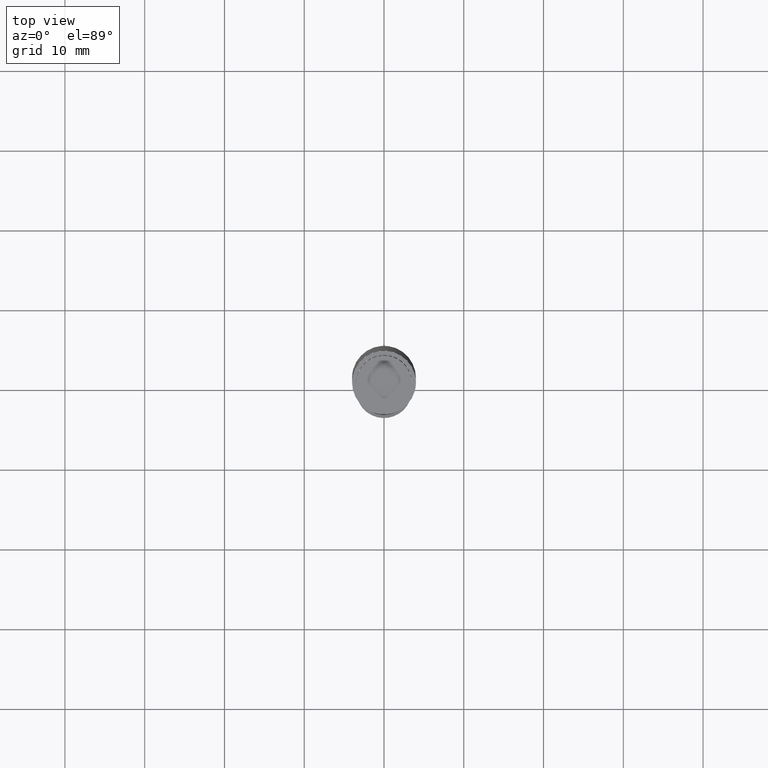
[diagram: clean part render]
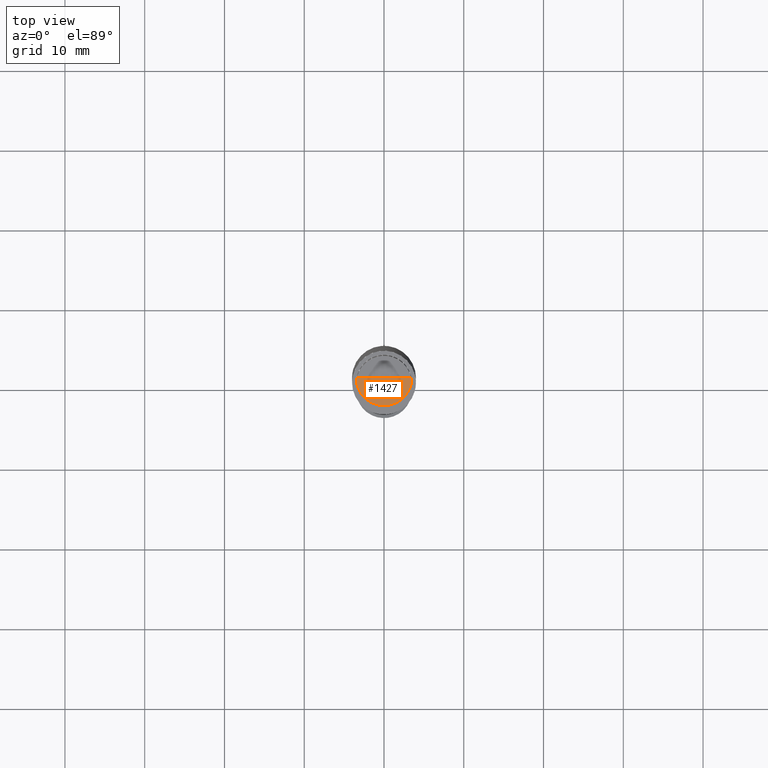
[diagram: same view with one face highlighted and labeled with its STEP entity id]
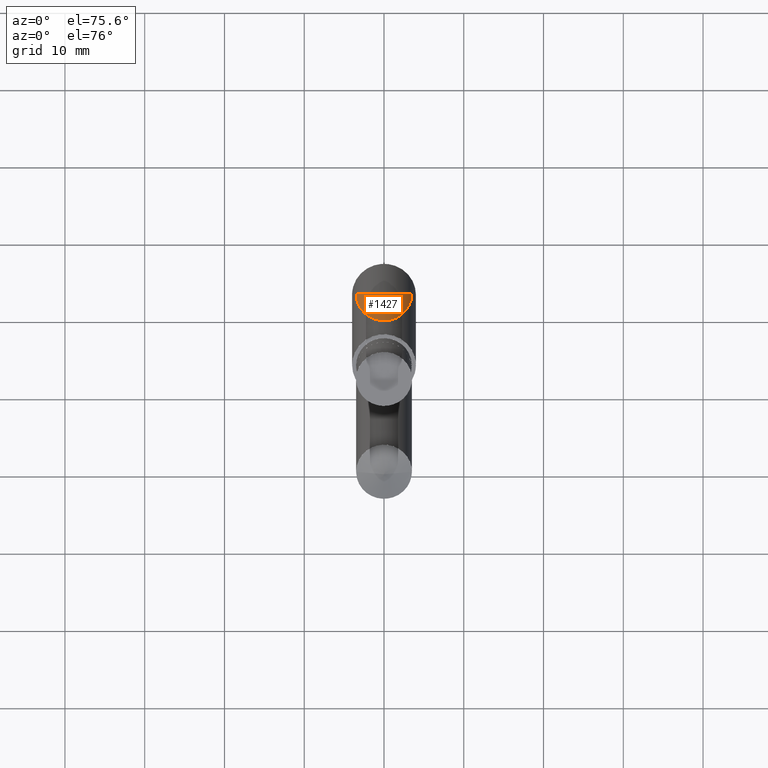
[diagram: same view with one face highlighted and labeled with its STEP entity id]
A machine part, top view. The second image highlights one B-rep face of the part: STEP entity #1427.
A second angle (auxiliary view) of the same face is appended — the face is thin or edge-on in the first view.
In plain terms, the highlighted face is a freeform B-spline surface patch.
Its self-contained STEP definition (entity closure, byte-faithful):
#1030=CARTESIAN_POINT('',(3.5,0.0,36.0));
#1034=CARTESIAN_POINT('',(-3.5,0.0,36.0));
#1035=CARTESIAN_POINT('',(0.0,0.0,36.0));
#1048=CARTESIAN_POINT('',(-3.5,-3.5,36.0));
#1049=CARTESIAN_POINT('',(0.0,-3.5,36.0));
#1050=CARTESIAN_POINT('',(3.5,-3.5,36.0));
#1412=(
BOUNDED_SURFACE()
B_SPLINE_SURFACE(1,2,(
(#1034,#1048,#1049,#1050,#1030),
(#1035,#1035,#1035,#1035,#1035)
), .UNSPECIFIED.,.F.,.F.,.F.)
B_SPLINE_SURFACE_WITH_KNOTS((2,2),(3,2,3),(
0.0,1.0),(
0.0,0.5,1.0), .UNSPECIFIED.)
GEOMETRIC_REPRESENTATION_ITEM()
RATIONAL_B_SPLINE_SURFACE(((1.0,0.707106781187,1.0,0.707106781187,1.0),
(1.0,0.707106781187,1.0,0.707106781187,1.0)
))
REPRESENTATION_ITEM('')
SURFACE()
);
#1413=(
BOUNDED_CURVE()
B_SPLINE_CURVE(2,(#1030,#1050,#1049,#1048,#1034),.UNSPECIFIED.,.F.,.F.)
B_SPLINE_CURVE_WITH_KNOTS((3,2,3),
(0.0,0.5,1.0),.UNSPECIFIED.)
CURVE()
GEOMETRIC_REPRESENTATION_ITEM()
RATIONAL_B_SPLINE_CURVE((1.0,0.707106781187,1.0,0.707106781187,1.0))
REPRESENTATION_ITEM('')
);
#1414=(
BOUNDED_CURVE()
B_SPLINE_CURVE(1,(#1034,#1035),.UNSPECIFIED.,.F.,.F.)
B_SPLINE_CURVE_WITH_KNOTS((2,2),
(0.0,1.0),.UNSPECIFIED.)
CURVE()
GEOMETRIC_REPRESENTATION_ITEM()
RATIONAL_B_SPLINE_CURVE((1.0,1.0))
REPRESENTATION_ITEM('')
);
#1415=(
BOUNDED_CURVE()
B_SPLINE_CURVE(1,(#1035,#1030),.UNSPECIFIED.,.F.,.F.)
B_SPLINE_CURVE_WITH_KNOTS((2,2),
(0.0,1.0),.UNSPECIFIED.)
CURVE()
GEOMETRIC_REPRESENTATION_ITEM()
RATIONAL_B_SPLINE_CURVE((1.0,1.0))
REPRESENTATION_ITEM('')
);
#1416=VERTEX_POINT('',#1030);
#1417=VERTEX_POINT('',#1034);
#1418=VERTEX_POINT('',#1035);
#1419=EDGE_CURVE('',#1416,#1417,#1413,.T.);
#1420=EDGE_CURVE('',#1417,#1418,#1414,.T.);
#1421=EDGE_CURVE('',#1418,#1416,#1415,.T.);
#1422=ORIENTED_EDGE('',*,*,#1419,.T.);
#1423=ORIENTED_EDGE('',*,*,#1420,.T.);
#1424=ORIENTED_EDGE('',*,*,#1421,.T.);
#1425=EDGE_LOOP('',(#1422,#1423,#1424));
#1426=FACE_OUTER_BOUND('',#1425,.T.);
#1427=ADVANCED_FACE('',(#1426),#1412,.T.);